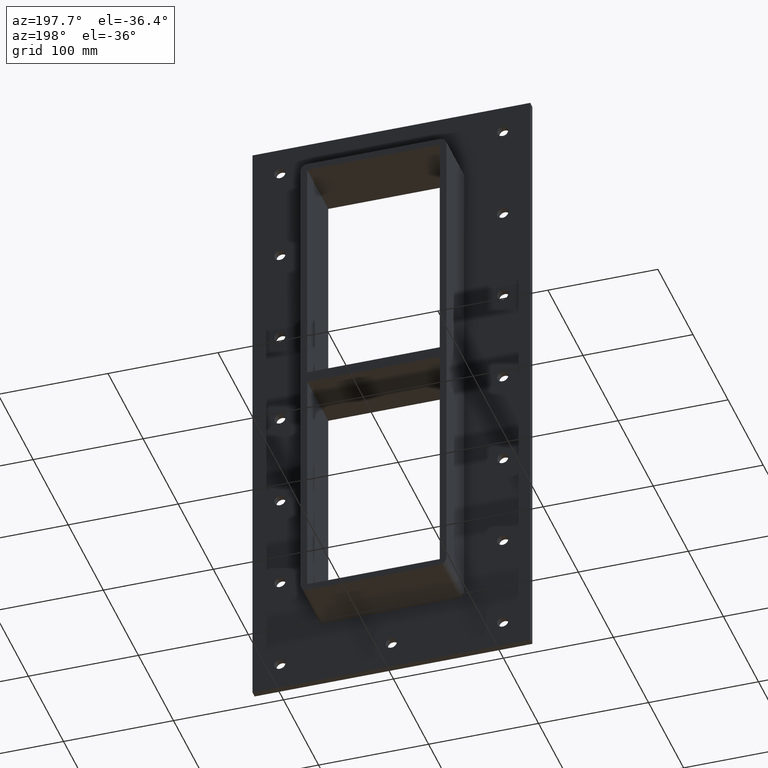
[diagram: clean part render]
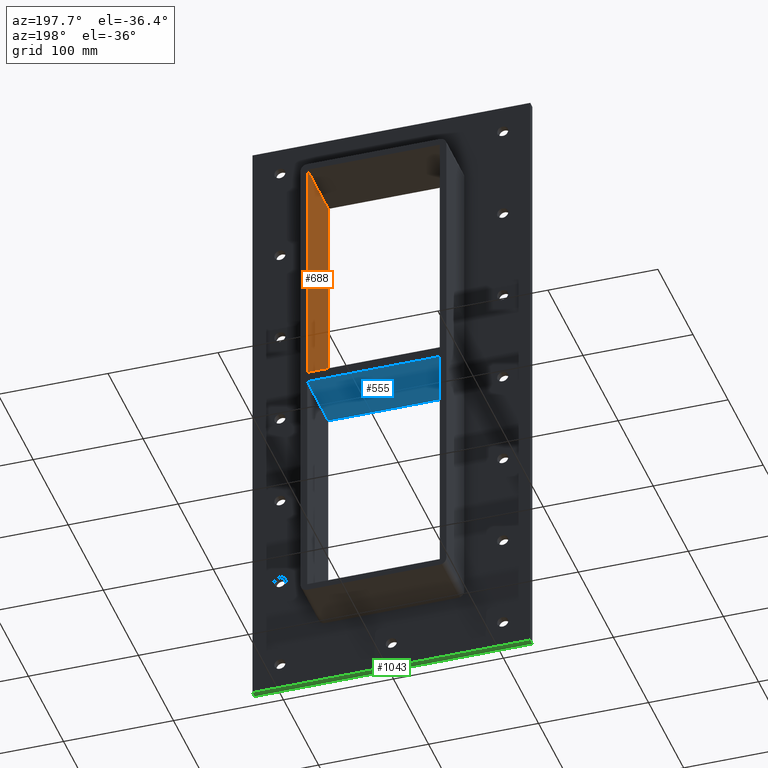
[diagram: same view with three faces highlighted in distinct colors, each labeled with its STEP entity id]
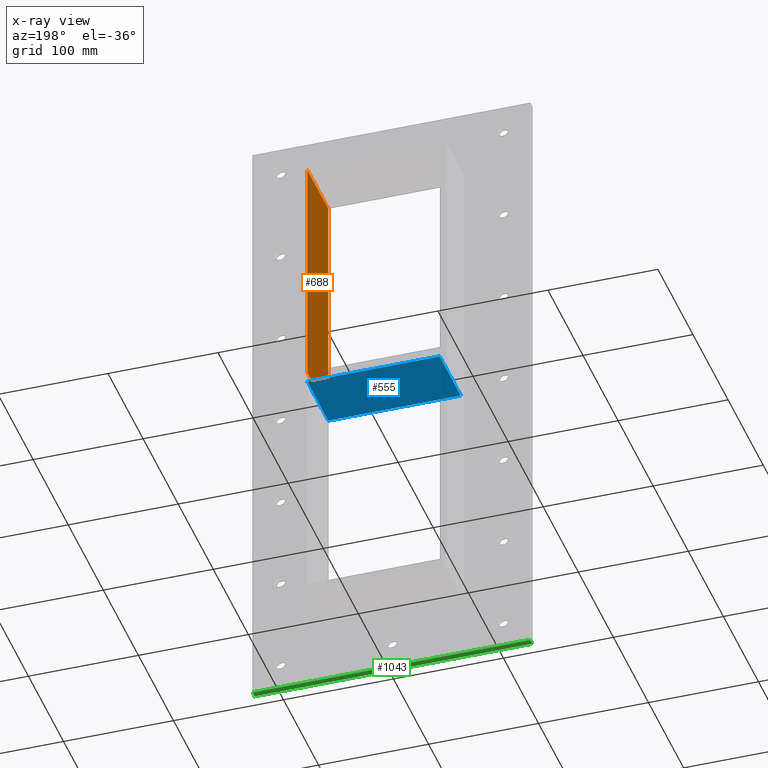
[diagram: x-ray of the same camera — body ghosted, the three highlighted faces saturated]
A machine part, auxiliary view with three faces highlighted in distinct colors.
The next image is the same camera in x-ray (body ghosted, the three faces saturated) — at least one of them is partly hidden behind the body in this view.
Their STEP definitions:

[orange] entity #688 — the highlighted planar face has unit normal (1, 0, 0).
#563=CARTESIAN_POINT('',(60.249999999999886,-3.0,5.0));
#564=VERTEX_POINT('',#563);
#571=CARTESIAN_POINT('',(60.249999999999901,57.0,5.0));
#572=VERTEX_POINT('',#571);
#573=CARTESIAN_POINT('',(60.25,57.000000000000007,5.0));
#574=DIRECTION('',(0.0,-1.0,0.0));
#575=VECTOR('',#574,60.000000000000007);
#576=LINE('',#573,#575);
#577=EDGE_CURVE('',#572,#564,#576,.T.);
#658=CARTESIAN_POINT('',(60.249999999999993,0.0,223.0));
#659=DIRECTION('',(1.0,0.0,0.0));
#660=DIRECTION('',(0.0,0.0,-1.0));
#661=AXIS2_PLACEMENT_3D('',#658,#659,#660);
#662=PLANE('',#661);
#663=ORIENTED_EDGE('',*,*,#577,.T.);
#664=CARTESIAN_POINT('',(60.249999999999993,-3.0,223.00000000000006));
#665=VERTEX_POINT('',#664);
#666=CARTESIAN_POINT('',(60.249999999999993,-3.0,223.00000000000006));
#667=DIRECTION('',(0.0,0.0,-1.0));
#668=VECTOR('',#667,218.00000000000006);
#669=LINE('',#666,#668);
#670=EDGE_CURVE('',#665,#564,#669,.T.);
#671=ORIENTED_EDGE('',*,*,#670,.F.);
#672=CARTESIAN_POINT('',(60.249999999999993,57.0,223.00000000000006));
#673=VERTEX_POINT('',#672);
#674=CARTESIAN_POINT('',(60.249999999999993,-3.0,223.0));
#675=DIRECTION('',(0.0,1.0,0.0));
#676=VECTOR('',#675,60.0);
#677=LINE('',#674,#676);
#678=EDGE_CURVE('',#665,#673,#677,.T.);
#679=ORIENTED_EDGE('',*,*,#678,.T.);
#680=CARTESIAN_POINT('',(60.249999999999993,57.0,5.0));
#681=DIRECTION('',(0.0,0.0,1.0));
#682=VECTOR('',#681,218.00000000000006);
#683=LINE('',#680,#682);
#684=EDGE_CURVE('',#572,#673,#683,.T.);
#685=ORIENTED_EDGE('',*,*,#684,.F.);
#686=EDGE_LOOP('',(#663,#671,#679,#685));
#687=FACE_OUTER_BOUND('',#686,.T.);
#688=ADVANCED_FACE('',(#687),#662,.F.);

[blue] entity #555 — the highlighted planar face has unit normal (0, 0, -1).
#516=CARTESIAN_POINT('',(60.249999999999886,-3.0,-5.0000000000108));
#517=DIRECTION('',(0.0,0.0,-1.0));
#518=DIRECTION('',(-1.0,0.0,0.0));
#519=AXIS2_PLACEMENT_3D('',#516,#517,#518);
#520=PLANE('',#519);
#521=CARTESIAN_POINT('',(60.249999999999886,-3.0,-5.0000000000108));
#522=VERTEX_POINT('',#521);
#523=CARTESIAN_POINT('',(-60.249999999999687,-3.0,-5.000000000011085));
#524=VERTEX_POINT('',#523);
#525=CARTESIAN_POINT('',(60.249999999999886,-3.0,-5.0000000000108));
#526=DIRECTION('',(-1.0,0.0,0.0));
#527=VECTOR('',#526,120.49999999999957);
#528=LINE('',#525,#527);
#529=EDGE_CURVE('',#522,#524,#528,.T.);
#530=ORIENTED_EDGE('',*,*,#529,.T.);
#531=CARTESIAN_POINT('',(-60.249999999999687,57.0,-5.000000000011085));
#532=VERTEX_POINT('',#531);
#533=CARTESIAN_POINT('',(-60.249999999999993,57.000000000000007,-5.000000000011085));
#534=DIRECTION('',(0.0,-1.0,0.0));
#535=VECTOR('',#534,60.000000000000007);
#536=LINE('',#533,#535);
#537=EDGE_CURVE('',#532,#524,#536,.T.);
#538=ORIENTED_EDGE('',*,*,#537,.F.);
#539=CARTESIAN_POINT('',(60.249999999999901,57.0,-5.0000000000108));
#540=VERTEX_POINT('',#539);
#541=CARTESIAN_POINT('',(60.249999999999886,57.0,-5.0000000000108));
#542=DIRECTION('',(-1.0,0.0,0.0));
#543=VECTOR('',#542,120.49999999999957);
#544=LINE('',#541,#543);
#545=EDGE_CURVE('',#540,#532,#544,.T.);
#546=ORIENTED_EDGE('',*,*,#545,.F.);
#547=CARTESIAN_POINT('',(60.249999999999993,-3.0,-5.0000000000108));
#548=DIRECTION('',(0.0,1.0,0.0));
#549=VECTOR('',#548,60.000000000000007);
#550=LINE('',#547,#549);
#551=EDGE_CURVE('',#522,#540,#550,.T.);
#552=ORIENTED_EDGE('',*,*,#551,.F.);
#553=EDGE_LOOP('',(#530,#538,#546,#552));
#554=FACE_OUTER_BOUND('',#553,.T.);
#555=ADVANCED_FACE('',(#554),#520,.T.);

[green] entity #1043 — the highlighted planar face has unit normal (0, 0, -1).
#704=CARTESIAN_POINT('',(126.25,6.000000000000001,-289.00000000000006));
#705=VERTEX_POINT('',#704);
#712=CARTESIAN_POINT('',(-126.25,6.000000000000001,-289.00000000000006));
#713=VERTEX_POINT('',#712);
#714=CARTESIAN_POINT('',(126.25,6.000000000000001,-289.00000000000006));
#715=DIRECTION('',(-1.0,0.0,0.0));
#716=VECTOR('',#715,252.5);
#717=LINE('',#714,#716);
#718=EDGE_CURVE('',#705,#713,#717,.T.);
#862=CARTESIAN_POINT('',(-126.25,0.0,-289.00000000000006));
#863=VERTEX_POINT('',#862);
#870=CARTESIAN_POINT('',(126.25,0.0,-289.00000000000006));
#871=VERTEX_POINT('',#870);
#872=CARTESIAN_POINT('',(126.25,0.0,-289.00000000000006));
#873=DIRECTION('',(-1.0,0.0,0.0));
#874=VECTOR('',#873,252.5);
#875=LINE('',#872,#874);
#876=EDGE_CURVE('',#871,#863,#875,.T.);
#1018=CARTESIAN_POINT('',(-126.25,0.0,-289.00000000000006));
#1019=DIRECTION('',(0.0,1.0,0.0));
#1020=VECTOR('',#1019,6.000000000000001);
#1021=LINE('',#1018,#1020);
#1022=EDGE_CURVE('',#863,#713,#1021,.T.);
#1027=CARTESIAN_POINT('',(126.25,0.0,-289.00000000000006));
#1028=DIRECTION('',(0.0,0.0,-1.0));
#1029=DIRECTION('',(-1.0,0.0,0.0));
#1030=AXIS2_PLACEMENT_3D('',#1027,#1028,#1029);
#1031=PLANE('',#1030);
#1032=ORIENTED_EDGE('',*,*,#876,.T.);
#1033=ORIENTED_EDGE('',*,*,#1022,.T.);
#1034=ORIENTED_EDGE('',*,*,#718,.F.);
#1035=CARTESIAN_POINT('',(126.25,0.0,-289.00000000000006));
#1036=DIRECTION('',(0.0,1.0,0.0));
#1037=VECTOR('',#1036,6.000000000000001);
#1038=LINE('',#1035,#1037);
#1039=EDGE_CURVE('',#871,#705,#1038,.T.);
#1040=ORIENTED_EDGE('',*,*,#1039,.F.);
#1041=EDGE_LOOP('',(#1032,#1033,#1034,#1040));
#1042=FACE_OUTER_BOUND('',#1041,.T.);
#1043=ADVANCED_FACE('',(#1042),#1031,.T.);